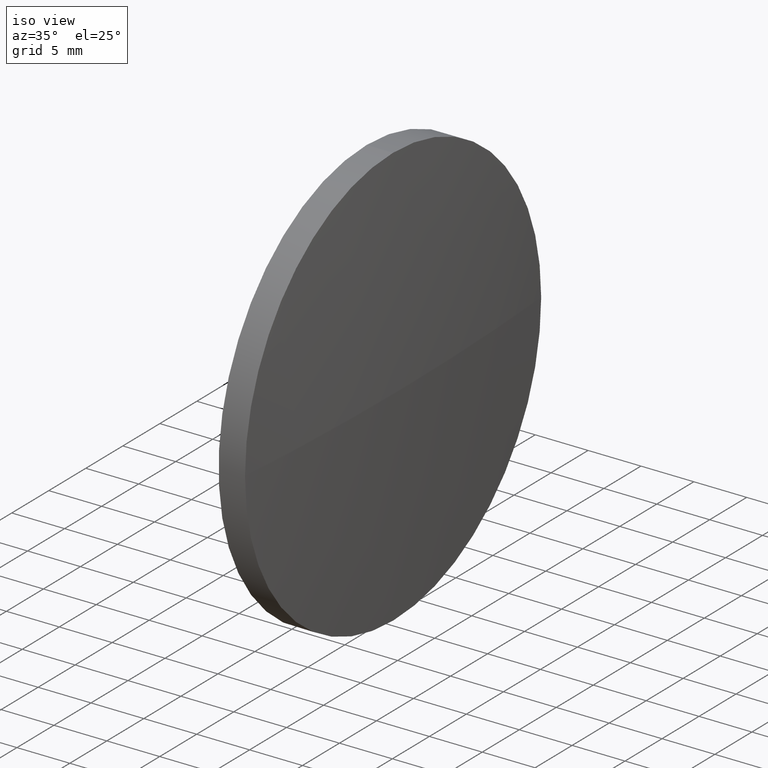
[diagram: clean part render]
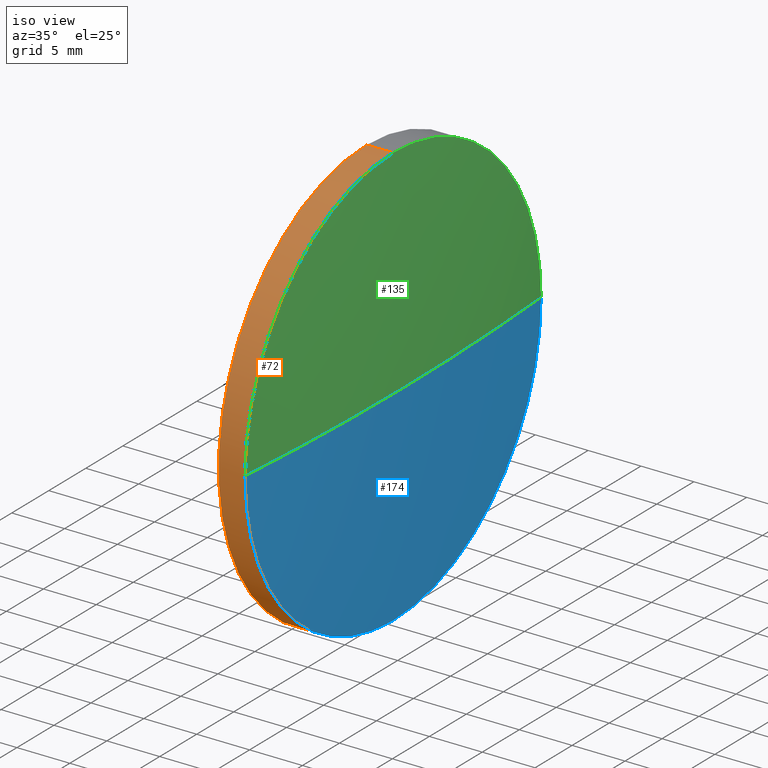
[diagram: same view with three faces highlighted in distinct colors, each labeled with its STEP entity id]
A machine part, iso view with three faces highlighted in distinct colors.
Their STEP definitions:

[orange] entity #72 — the highlighted cylindrical surface (partial cylindrical patch) has radius 20 mm, axis along (-1, -0, -0).
#1 = VECTOR ( 'NONE', #133, 1000.000000000000000 ) ;
#2 = ORIENTED_EDGE ( 'NONE', *, *, #52, .F. ) ;
#18 = VERTEX_POINT ( 'NONE', #142 ) ;
#25 = AXIS2_PLACEMENT_3D ( 'NONE', #95, #173, #159 ) ;
#45 = CARTESIAN_POINT ( 'NONE',  ( 564.0754252328479200, 109.2775278942657500, 20.00000000000000400 ) ) ;
#46 = CARTESIAN_POINT ( 'NONE',  ( 566.5754252328480300, 109.2775278942657500, 20.00000000000000400 ) ) ;
#51 = FACE_OUTER_BOUND ( 'NONE', #118, .T. ) ;
#52 = EDGE_CURVE ( 'NONE', #62, #93, #123, .T. ) ;
#54 = ORIENTED_EDGE ( 'NONE', *, *, #94, .F. ) ;
#55 = DIRECTION ( 'NONE',  ( -1.000000000000000000, -0.0000000000000000000, -0.0000000000000000000 ) ) ;
#57 = CYLINDRICAL_SURFACE ( 'NONE', #25, 20.00000000000000400 ) ;
#58 = DIRECTION ( 'NONE',  ( -1.000000000000000000, -0.0000000000000000000, -0.0000000000000000000 ) ) ;
#61 = CIRCLE ( 'NONE', #166, 20.00000000000000400 ) ;
#62 = VERTEX_POINT ( 'NONE', #144 ) ;
#63 = CARTESIAN_POINT ( 'NONE',  ( 566.5754252328480300, 109.2775278942657500, 0.0000000000000000000 ) ) ;
#66 = ORIENTED_EDGE ( 'NONE', *, *, #122, .T. ) ;
#72 = ADVANCED_FACE ( 'NONE', ( #51 ), #57, .T. ) ;
#75 = CARTESIAN_POINT ( 'NONE',  ( 554.5689279130747300, 109.2775278942657500, 20.00000000000000400 ) ) ;
#76 = EDGE_CURVE ( 'NONE', #18, #138, #61, .T. ) ;
#84 = LINE ( 'NONE', #75, #1 ) ;
#93 = VERTEX_POINT ( 'NONE', #45 ) ;
#94 = EDGE_CURVE ( 'NONE', #18, #62, #167, .T. ) ;
#95 = CARTESIAN_POINT ( 'NONE',  ( 554.5689279130747300, 109.2775278942657500, 0.0000000000000000000 ) ) ;
#96 = CARTESIAN_POINT ( 'NONE',  ( 564.0754252328479200, 109.2775278942657500, 0.0000000000000000000 ) ) ;
#100 = VERTEX_POINT ( 'NONE', #46 ) ;
#107 = ORIENTED_EDGE ( 'NONE', *, *, #136, .T. ) ;
#113 = DIRECTION ( 'NONE',  ( 0.0000000000000000000, 0.0000000000000000000, 1.000000000000000000 ) ) ;
#114 = ORIENTED_EDGE ( 'NONE', *, *, #76, .T. ) ;
#115 = DIRECTION ( 'NONE',  ( -1.000000000000000000, -0.0000000000000000000, -0.0000000000000000000 ) ) ;
#116 = DIRECTION ( 'NONE',  ( 0.0000000000000000000, 0.0000000000000000000, 1.000000000000000000 ) ) ;
#118 = EDGE_LOOP ( 'NONE', ( #54, #114, #107, #66, #2 ) ) ;
#119 = DIRECTION ( 'NONE',  ( -1.000000000000000000, -0.0000000000000000000, -0.0000000000000000000 ) ) ;
#122 = EDGE_CURVE ( 'NONE', #100, #93, #84, .T. ) ;
#123 = CIRCLE ( 'NONE', #171, 20.00000000000000400 ) ;
#127 = CARTESIAN_POINT ( 'NONE',  ( 554.5689279130747300, 109.2775278942657500, -20.00000000000000400 ) ) ;
#129 = VECTOR ( 'NONE', #115, 1000.000000000000000 ) ;
#131 = CIRCLE ( 'NONE', #182, 20.00000000000000400 ) ;
#133 = DIRECTION ( 'NONE',  ( -1.000000000000000000, -0.0000000000000000000, -0.0000000000000000000 ) ) ;
#134 = DIRECTION ( 'NONE',  ( 0.0000000000000000000, 0.0000000000000000000, 1.000000000000000000 ) ) ;
#136 = EDGE_CURVE ( 'NONE', #138, #100, #131, .T. ) ;
#138 = VERTEX_POINT ( 'NONE', #149 ) ;
#142 = CARTESIAN_POINT ( 'NONE',  ( 566.5754252328480300, 109.2775278942657500, -20.00000000000000400 ) ) ;
#144 = CARTESIAN_POINT ( 'NONE',  ( 564.0754252328479200, 109.2775278942657500, -20.00000000000000400 ) ) ;
#149 = CARTESIAN_POINT ( 'NONE',  ( 566.5754252328480300, 89.27752789426587300, 0.0000000000000000000 ) ) ;
#157 = CARTESIAN_POINT ( 'NONE',  ( 566.5754252328480300, 109.2775278942657500, 0.0000000000000000000 ) ) ;
#159 = DIRECTION ( 'NONE',  ( 0.0000000000000000000, 0.0000000000000000000, 1.000000000000000000 ) ) ;
#166 = AXIS2_PLACEMENT_3D ( 'NONE', #157, #58, #116 ) ;
#167 = LINE ( 'NONE', #127, #129 ) ;
#171 = AXIS2_PLACEMENT_3D ( 'NONE', #96, #55, #113 ) ;
#173 = DIRECTION ( 'NONE',  ( -1.000000000000000000, -0.0000000000000000000, -0.0000000000000000000 ) ) ;
#182 = AXIS2_PLACEMENT_3D ( 'NONE', #63, #119, #134 ) ;

[blue] entity #174 — the highlighted spherical surface has radius 256.8 mm.
#4 = DIRECTION ( 'NONE',  ( 0.0000000000000000000, -1.000000000000000000, -1.224646799147353000E-016 ) ) ;
#17 = DIRECTION ( 'NONE',  ( 0.0000000000000000000, 0.0000000000000000000, -1.000000000000000000 ) ) ;
#18 = VERTEX_POINT ( 'NONE', #142 ) ;
#19 = CARTESIAN_POINT ( 'NONE',  ( 567.3554252328480100, 109.2775278942659600, 0.0000000000000000000 ) ) ;
#23 = SPHERICAL_SURFACE ( 'NONE', #56, 256.8002564102562800 ) ;
#24 = EDGE_LOOP ( 'NONE', ( #44, #38, #82, #79 ) ) ;
#27 = AXIS2_PLACEMENT_3D ( 'NONE', #65, #31, #4 ) ;
#29 = CARTESIAN_POINT ( 'NONE',  ( 566.5754252328480300, 109.2775278942657500, 0.0000000000000000000 ) ) ;
#31 = DIRECTION ( 'NONE',  ( 0.0000000000000000000, -1.224646799147353200E-016, 1.000000000000000000 ) ) ;
#38 = ORIENTED_EDGE ( 'NONE', *, *, #104, .T. ) ;
#42 = EDGE_CURVE ( 'NONE', #153, #18, #125, .T. ) ;
#44 = ORIENTED_EDGE ( 'NONE', *, *, #168, .F. ) ;
#47 = CIRCLE ( 'NONE', #178, 256.8002564102562800 ) ;
#48 = CARTESIAN_POINT ( 'NONE',  ( 310.5551688225917200, 109.2775278942659700, 0.0000000000000000000 ) ) ;
#56 = AXIS2_PLACEMENT_3D ( 'NONE', #160, #88, #86 ) ;
#58 = DIRECTION ( 'NONE',  ( -1.000000000000000000, -0.0000000000000000000, -0.0000000000000000000 ) ) ;
#61 = CIRCLE ( 'NONE', #166, 20.00000000000000400 ) ;
#65 = CARTESIAN_POINT ( 'NONE',  ( 310.5551688225917200, 109.2775278942659700, 0.0000000000000000000 ) ) ;
#68 = DIRECTION ( 'NONE',  ( -1.000000000000000000, -0.0000000000000000000, -0.0000000000000000000 ) ) ;
#76 = EDGE_CURVE ( 'NONE', #18, #138, #61, .T. ) ;
#79 = ORIENTED_EDGE ( 'NONE', *, *, #42, .F. ) ;
#82 = ORIENTED_EDGE ( 'NONE', *, *, #76, .F. ) ;
#86 = DIRECTION ( 'NONE',  ( 0.0000000000000000000, -1.000000000000000000, 0.0000000000000000000 ) ) ;
#88 = DIRECTION ( 'NONE',  ( 0.0000000000000000000, 0.0000000000000000000, 1.000000000000000000 ) ) ;
#89 = CIRCLE ( 'NONE', #27, 256.8002564102562800 ) ;
#101 = DIRECTION ( 'NONE',  ( -1.000000000000000000, 0.0000000000000000000, 0.0000000000000000000 ) ) ;
#104 = EDGE_CURVE ( 'NONE', #154, #138, #47, .T. ) ;
#112 = DIRECTION ( 'NONE',  ( 0.0000000000000000000, 0.0000000000000000000, 1.000000000000000000 ) ) ;
#116 = DIRECTION ( 'NONE',  ( 0.0000000000000000000, 0.0000000000000000000, 1.000000000000000000 ) ) ;
#124 = FACE_OUTER_BOUND ( 'NONE', #24, .T. ) ;
#125 = CIRCLE ( 'NONE', #165, 20.00000000000000400 ) ;
#138 = VERTEX_POINT ( 'NONE', #149 ) ;
#142 = CARTESIAN_POINT ( 'NONE',  ( 566.5754252328480300, 109.2775278942657500, -20.00000000000000400 ) ) ;
#149 = CARTESIAN_POINT ( 'NONE',  ( 566.5754252328480300, 89.27752789426587300, 0.0000000000000000000 ) ) ;
#153 = VERTEX_POINT ( 'NONE', #176 ) ;
#154 = VERTEX_POINT ( 'NONE', #19 ) ;
#157 = CARTESIAN_POINT ( 'NONE',  ( 566.5754252328480300, 109.2775278942657500, 0.0000000000000000000 ) ) ;
#160 = CARTESIAN_POINT ( 'NONE',  ( 310.5551688225917200, 109.2775278942659700, 0.0000000000000000000 ) ) ;
#165 = AXIS2_PLACEMENT_3D ( 'NONE', #29, #68, #112 ) ;
#166 = AXIS2_PLACEMENT_3D ( 'NONE', #157, #58, #116 ) ;
#168 = EDGE_CURVE ( 'NONE', #154, #153, #89, .T. ) ;
#174 = ADVANCED_FACE ( 'NONE', ( #124 ), #23, .T. ) ;
#176 = CARTESIAN_POINT ( 'NONE',  ( 566.5754252328480300, 129.2775278942658300, 2.449293598294688800E-015 ) ) ;
#178 = AXIS2_PLACEMENT_3D ( 'NONE', #48, #17, #101 ) ;

[green] entity #135 — the highlighted spherical surface has radius 256.8 mm.
#4 = DIRECTION ( 'NONE',  ( 0.0000000000000000000, -1.000000000000000000, -1.224646799147353000E-016 ) ) ;
#7 = DIRECTION ( 'NONE',  ( 0.0000000000000000000, 0.0000000000000000000, 1.000000000000000000 ) ) ;
#12 = CIRCLE ( 'NONE', #50, 20.00000000000000400 ) ;
#14 = AXIS2_PLACEMENT_3D ( 'NONE', #161, #7, #151 ) ;
#17 = DIRECTION ( 'NONE',  ( 0.0000000000000000000, 0.0000000000000000000, -1.000000000000000000 ) ) ;
#19 = CARTESIAN_POINT ( 'NONE',  ( 567.3554252328480100, 109.2775278942659600, 0.0000000000000000000 ) ) ;
#27 = AXIS2_PLACEMENT_3D ( 'NONE', #65, #31, #4 ) ;
#31 = DIRECTION ( 'NONE',  ( 0.0000000000000000000, -1.224646799147353200E-016, 1.000000000000000000 ) ) ;
#46 = CARTESIAN_POINT ( 'NONE',  ( 566.5754252328480300, 109.2775278942657500, 20.00000000000000400 ) ) ;
#47 = CIRCLE ( 'NONE', #178, 256.8002564102562800 ) ;
#48 = CARTESIAN_POINT ( 'NONE',  ( 310.5551688225917200, 109.2775278942659700, 0.0000000000000000000 ) ) ;
#50 = AXIS2_PLACEMENT_3D ( 'NONE', #147, #64, #130 ) ;
#63 = CARTESIAN_POINT ( 'NONE',  ( 566.5754252328480300, 109.2775278942657500, 0.0000000000000000000 ) ) ;
#64 = DIRECTION ( 'NONE',  ( -1.000000000000000000, -0.0000000000000000000, -0.0000000000000000000 ) ) ;
#65 = CARTESIAN_POINT ( 'NONE',  ( 310.5551688225917200, 109.2775278942659700, 0.0000000000000000000 ) ) ;
#81 = EDGE_LOOP ( 'NONE', ( #121, #170, #175, #111 ) ) ;
#89 = CIRCLE ( 'NONE', #27, 256.8002564102562800 ) ;
#100 = VERTEX_POINT ( 'NONE', #46 ) ;
#101 = DIRECTION ( 'NONE',  ( -1.000000000000000000, 0.0000000000000000000, 0.0000000000000000000 ) ) ;
#104 = EDGE_CURVE ( 'NONE', #154, #138, #47, .T. ) ;
#111 = ORIENTED_EDGE ( 'NONE', *, *, #136, .F. ) ;
#119 = DIRECTION ( 'NONE',  ( -1.000000000000000000, -0.0000000000000000000, -0.0000000000000000000 ) ) ;
#121 = ORIENTED_EDGE ( 'NONE', *, *, #104, .F. ) ;
#126 = EDGE_CURVE ( 'NONE', #100, #153, #12, .T. ) ;
#130 = DIRECTION ( 'NONE',  ( 0.0000000000000000000, 0.0000000000000000000, 1.000000000000000000 ) ) ;
#131 = CIRCLE ( 'NONE', #182, 20.00000000000000400 ) ;
#134 = DIRECTION ( 'NONE',  ( 0.0000000000000000000, 0.0000000000000000000, 1.000000000000000000 ) ) ;
#135 = ADVANCED_FACE ( 'NONE', ( #169 ), #156, .T. ) ;
#136 = EDGE_CURVE ( 'NONE', #138, #100, #131, .T. ) ;
#138 = VERTEX_POINT ( 'NONE', #149 ) ;
#147 = CARTESIAN_POINT ( 'NONE',  ( 566.5754252328480300, 109.2775278942657500, 0.0000000000000000000 ) ) ;
#149 = CARTESIAN_POINT ( 'NONE',  ( 566.5754252328480300, 89.27752789426587300, 0.0000000000000000000 ) ) ;
#151 = DIRECTION ( 'NONE',  ( 0.0000000000000000000, -1.000000000000000000, 0.0000000000000000000 ) ) ;
#153 = VERTEX_POINT ( 'NONE', #176 ) ;
#154 = VERTEX_POINT ( 'NONE', #19 ) ;
#156 = SPHERICAL_SURFACE ( 'NONE', #14, 256.8002564102562800 ) ;
#161 = CARTESIAN_POINT ( 'NONE',  ( 310.5551688225917200, 109.2775278942659700, 0.0000000000000000000 ) ) ;
#168 = EDGE_CURVE ( 'NONE', #154, #153, #89, .T. ) ;
#169 = FACE_OUTER_BOUND ( 'NONE', #81, .T. ) ;
#170 = ORIENTED_EDGE ( 'NONE', *, *, #168, .T. ) ;
#175 = ORIENTED_EDGE ( 'NONE', *, *, #126, .F. ) ;
#176 = CARTESIAN_POINT ( 'NONE',  ( 566.5754252328480300, 129.2775278942658300, 2.449293598294688800E-015 ) ) ;
#178 = AXIS2_PLACEMENT_3D ( 'NONE', #48, #17, #101 ) ;
#182 = AXIS2_PLACEMENT_3D ( 'NONE', #63, #119, #134 ) ;